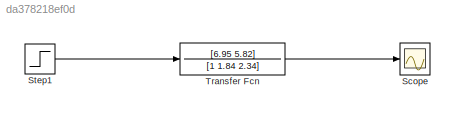
MODEL slx_da378218ef0d
KIND model
BLOCK [Scope] Scope
  Floating = off
  NumInputPorts = 1
  Ports = [1]
  ShowLegends = off
  YMax = 1
  YMin = -1
BLOCK [Step] Step1
  SampleTime = 0
BLOCK [TransferFcn] Transfer Fcn
  Denominator = [1 1.84 2.34]
  Numerator = [6.95 5.82]
LINE Step1:1 -> Transfer Fcn:1
LINE Transfer Fcn:1 -> Scope:1
